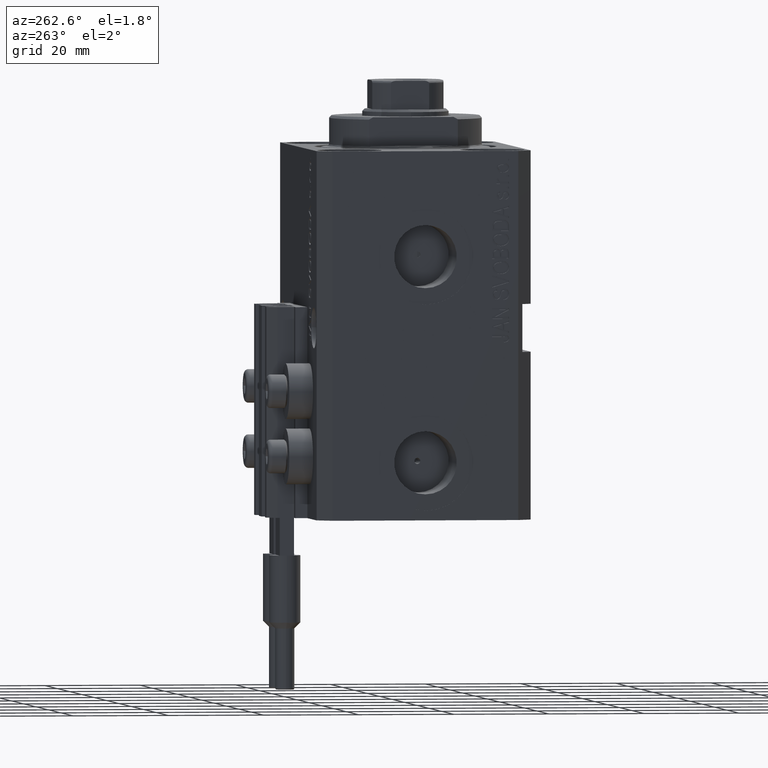
[diagram: clean part render]
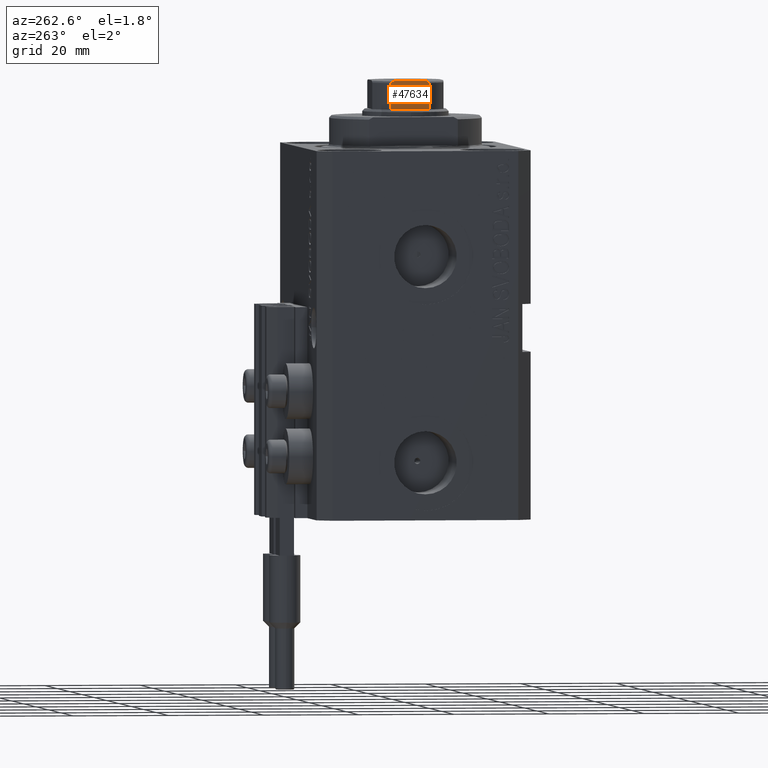
[diagram: same view with one face highlighted and labeled with its STEP entity id]
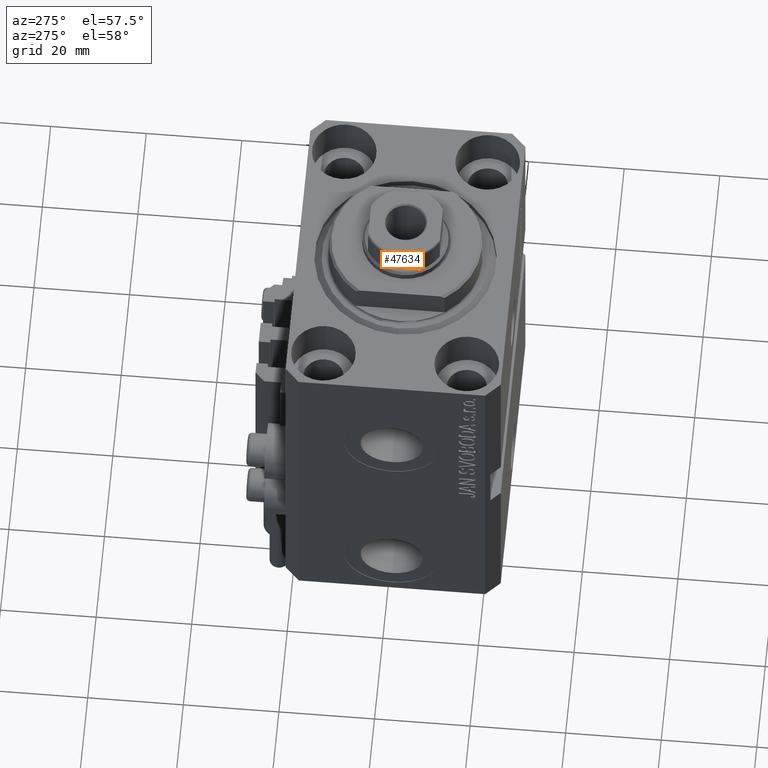
[diagram: same view with one face highlighted and labeled with its STEP entity id]
A machine part, auxiliary view. The second image highlights one B-rep face of the part: STEP entity #47634.
A second angle (auxiliary view) of the same face is appended — the face is thin or edge-on in the first view.
In plain terms, the highlighted planar face has unit normal (1, 0, 0).
Its self-contained STEP definition (entity closure, byte-faithful):
#210 = VERTEX_POINT ( 'NONE', #4195 ) ;
#994 = EDGE_CURVE ( 'NONE', #21073, #37991, #28818, .T. ) ;
#1606 = VECTOR ( 'NONE', #46652, 1000.000000000000000 ) ;
#2094 = DIRECTION ( 'NONE',  ( -5.782411586589357392E-17, 1.000000000000000000, 0.000000000000000000 ) ) ;
#2662 = CARTESIAN_POINT ( 'NONE',  ( -7.500000000000002665, -3.999999999999996447, 83.49999999999997158 ) ) ;
#2941 = ORIENTED_EDGE ( 'NONE', *, *, #23827, .T. ) ;
#3491 = VERTEX_POINT ( 'NONE', #40223 ) ;
#4195 = CARTESIAN_POINT ( 'NONE',  ( -7.499999999999998224, -2.783882181415016088, 84.00000000000000000 ) ) ;
#7652 = CARTESIAN_POINT ( 'NONE',  ( -7.499999999999998224, -2.783882181415016088, 84.00000000000000000 ) ) ;
#7700 = DIRECTION ( 'NONE',  ( 5.782411586589357392E-17, -1.000000000000000000, 0.000000000000000000 ) ) ;
#9129 = LINE ( 'NONE', #12789, #1606 ) ;
#10442 = CARTESIAN_POINT ( 'NONE',  ( -7.500000000000002665, -3.999999999999996447, 78.00000000000001421 ) ) ;
#10831 = CARTESIAN_POINT ( 'NONE',  ( -7.499999999999998224, -3.858352854028585632, 83.75117951603152733 ) ) ;
#10890 = ORIENTED_EDGE ( 'NONE', *, *, #24290, .F. ) ;
#11066 = CARTESIAN_POINT ( 'NONE',  ( -7.499999999999995559, -3.597188386589913023, 83.89052843393240266 ) ) ;
#11318 = CARTESIAN_POINT ( 'NONE',  ( -7.499999999999999112, -3.976018255615924701, 83.61726199300996143 ) ) ;
#12789 = CARTESIAN_POINT ( 'NONE',  ( -7.499999999999998224, 7.499999999999999112, 78.00000000000000000 ) ) ;
#12815 = AXIS2_PLACEMENT_3D ( 'NONE', #39886, #34992, #2094 ) ;
#14208 = CARTESIAN_POINT ( 'NONE',  ( -7.500000000000001776, 3.999999999999998224, 83.49999999999997158 ) ) ;
#14749 = CARTESIAN_POINT ( 'NONE',  ( -7.499999999999997335, -3.904208668232349133, 83.71278134537494964 ) ) ;
#17999 = LINE ( 'NONE', #26347, #25129 ) ;
#18141 = CARTESIAN_POINT ( 'NONE',  ( -7.499999999999997335, 3.857502111569858005, 83.75173359969208775 ) ) ;
#20822 = CARTESIAN_POINT ( 'NONE',  ( -7.500000000000001776, 3.999999999999998224, -0.001000000000001000089 ) ) ;
#21073 = VERTEX_POINT ( 'NONE', #10442 ) ;
#21339 = CARTESIAN_POINT ( 'NONE',  ( -7.499999999999998224, 3.020030562295411336, 83.99999999999995737 ) ) ;
#22753 = ORIENTED_EDGE ( 'NONE', *, *, #46870, .T. ) ;
#23827 = EDGE_CURVE ( 'NONE', #3491, #21073, #9129, .T. ) ;
#24290 = EDGE_CURVE ( 'NONE', #38626, #210, #17999, .T. ) ;
#25129 = VECTOR ( 'NONE', #7700, 1000.000000000000000 ) ;
#25511 = CARTESIAN_POINT ( 'NONE',  ( -7.499999999999996447, 4.000000000000207834, 83.56034186205211256 ) ) ;
#26047 = CARTESIAN_POINT ( 'NONE',  ( -7.499999999999995559, -3.020011215871894361, 83.99999999999995737 ) ) ;
#26347 = CARTESIAN_POINT ( 'NONE',  ( -7.499999999999998224, 7.499999999999999112, 84.00000000000000000 ) ) ;
#27630 = PLANE ( 'NONE',  #12815 ) ;
#28408 = ORIENTED_EDGE ( 'NONE', *, *, #994, .T. ) ;
#28459 = CARTESIAN_POINT ( 'NONE',  ( -7.499999999999998224, 2.783882181415015644, 84.00000000000000000 ) ) ;
#28708 = EDGE_CURVE ( 'NONE', #38626, #38098, #41469, .T. ) ;
#28818 = LINE ( 'NONE', #35697, #33220 ) ;
#29191 = CARTESIAN_POINT ( 'NONE',  ( -7.499999999999997335, 3.255843148148218180, 83.98262378726870736 ) ) ;
#29440 = CARTESIAN_POINT ( 'NONE',  ( -7.499999999999998224, 3.710689790367168506, 83.84812118173427109 ) ) ;
#29497 = CARTESIAN_POINT ( 'NONE',  ( -7.500000000000004441, -3.999999999999997335, 83.56026396800439215 ) ) ;
#29832 = B_SPLINE_CURVE_WITH_KNOTS ( 'NONE', 3,
 ( #48371, #29497, #11318, #14749, #10831, #44699, #11066, #30233, #26047, #7652 ),
 .UNSPECIFIED., .F., .F.,
 ( 4, 2, 2, 2, 4 ),
 ( 2.823925224926892107E-17, 0.0001779688448869142295, 0.0003559376897738009745, 0.0007118753795475517504, 0.001423750759095054712 ),
 .UNSPECIFIED. ) ;
#30233 = CARTESIAN_POINT ( 'NONE',  ( -7.499999999999996447, -3.254991323038170403, 83.98269028443158390 ) ) ;
#31800 = FACE_OUTER_BOUND ( 'NONE', #40222, .T. ) ;
#32630 = CARTESIAN_POINT ( 'NONE',  ( -7.499999999999999112, 3.975735230428961042, 83.61773041319774791 ) ) ;
#32741 = DIRECTION ( 'NONE',  ( -0.000000000000000000, -0.000000000000000000, 1.000000000000000000 ) ) ;
#32872 = CARTESIAN_POINT ( 'NONE',  ( -7.499999999999997335, 3.598393151503796794, 83.89012191927410811 ) ) ;
#33220 = VECTOR ( 'NONE', #32741, 1000.000000000000000 ) ;
#33313 = ORIENTED_EDGE ( 'NONE', *, *, #28708, .T. ) ;
#34992 = DIRECTION ( 'NONE',  ( 1.000000000000000000, 5.782411586589357392E-17, -0.000000000000000000 ) ) ;
#35303 = DIRECTION ( 'NONE',  ( -0.000000000000000000, -0.000000000000000000, 1.000000000000000000 ) ) ;
#35697 = CARTESIAN_POINT ( 'NONE',  ( -7.500000000000002665, -3.999999999999996447, -0.001000000000001000089 ) ) ;
#37991 = VERTEX_POINT ( 'NONE', #2662 ) ;
#38098 = VERTEX_POINT ( 'NONE', #38598 ) ;
#38598 = CARTESIAN_POINT ( 'NONE',  ( -7.500000000000001776, 3.999999999999998224, 83.49999999999997158 ) ) ;
#38626 = VERTEX_POINT ( 'NONE', #47323 ) ;
#39013 = LINE ( 'NONE', #20822, #47685 ) ;
#39886 = CARTESIAN_POINT ( 'NONE',  ( -7.499999999999998224, 7.499999999999999112, 84.00000000000000000 ) ) ;
#40222 = EDGE_LOOP ( 'NONE', ( #28408, #22753, #10890, #33313, #48377, #2941 ) ) ;
#40223 = CARTESIAN_POINT ( 'NONE',  ( -7.500000000000001776, 3.999999999999995559, 78.00000000000001421 ) ) ;
#40244 = CARTESIAN_POINT ( 'NONE',  ( -7.499999999999998224, 3.904072061442369179, 83.71287056890805900 ) ) ;
#41469 = B_SPLINE_CURVE_WITH_KNOTS ( 'NONE', 3,
 ( #28459, #21339, #29191, #32872, #29440, #18141, #40244, #32630, #25511, #14208 ),
 .UNSPECIFIED., .F., .F.,
 ( 4, 2, 2, 2, 4 ),
 ( 0.000000000000000000, 0.0007049202178654221480, 0.001057380326798138589, 0.001233610381264485696, 0.001409840435730833020 ),
 .UNSPECIFIED. ) ;
#44699 = CARTESIAN_POINT ( 'NONE',  ( -7.500000000000000000, -3.708875323752946596, 83.84930352055462777 ) ) ;
#45962 = EDGE_CURVE ( 'NONE', #3491, #38098, #39013, .T. ) ;
#46652 = DIRECTION ( 'NONE',  ( 5.782411586589357392E-17, -1.000000000000000000, 0.000000000000000000 ) ) ;
#46870 = EDGE_CURVE ( 'NONE', #37991, #210, #29832, .T. ) ;
#47323 = CARTESIAN_POINT ( 'NONE',  ( -7.499999999999998224, 2.783882181415015644, 84.00000000000000000 ) ) ;
#47634 = ADVANCED_FACE ( 'NONE', ( #31800 ), #27630, .F. ) ;
#47685 = VECTOR ( 'NONE', #35303, 1000.000000000000000 ) ;
#48371 = CARTESIAN_POINT ( 'NONE',  ( -7.500000000000002665, -3.999999999999996447, 83.49999999999997158 ) ) ;
#48377 = ORIENTED_EDGE ( 'NONE', *, *, #45962, .F. ) ;